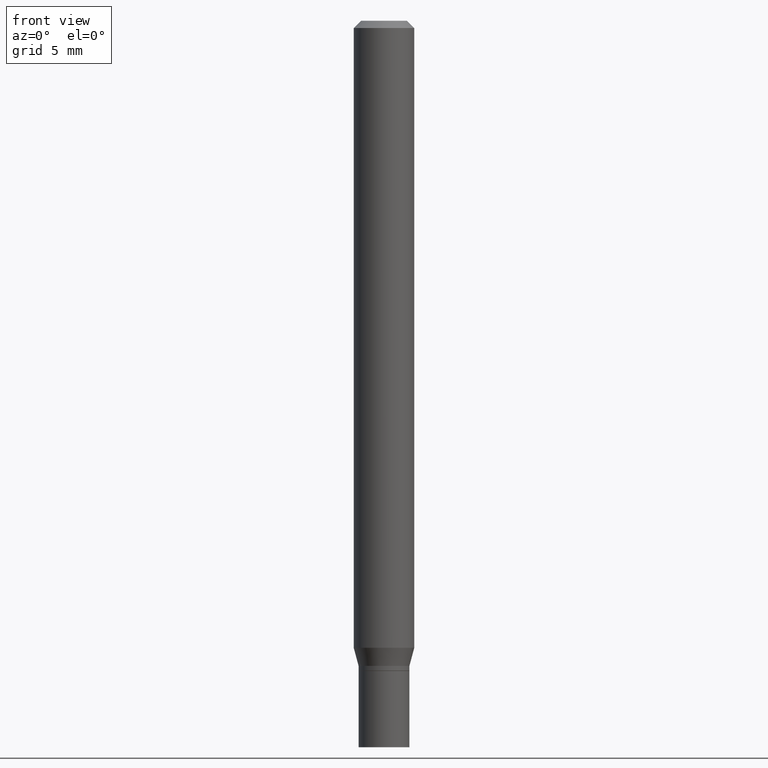
[diagram: clean part render]
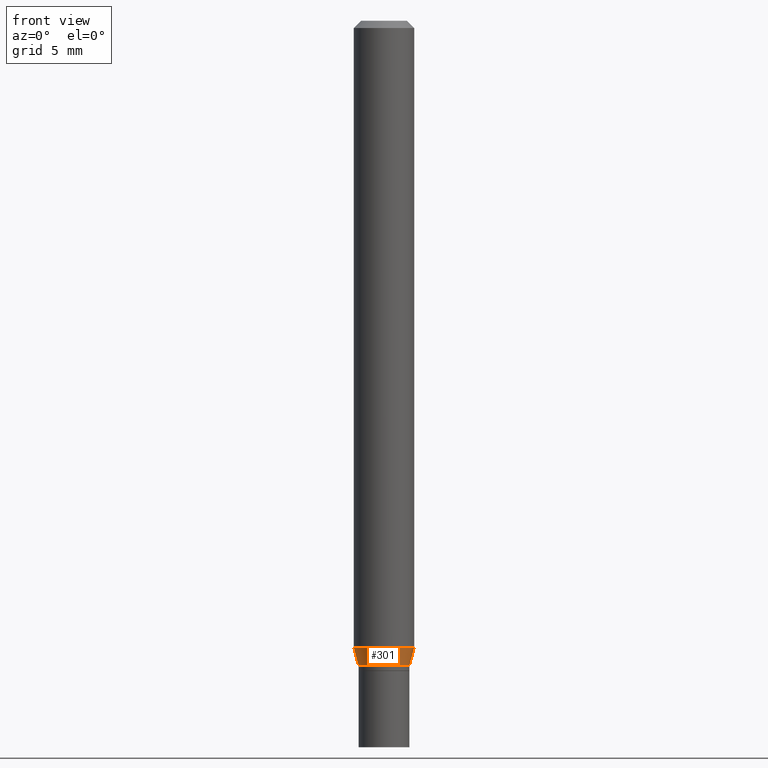
[diagram: same view with one face highlighted and labeled with its STEP entity id]
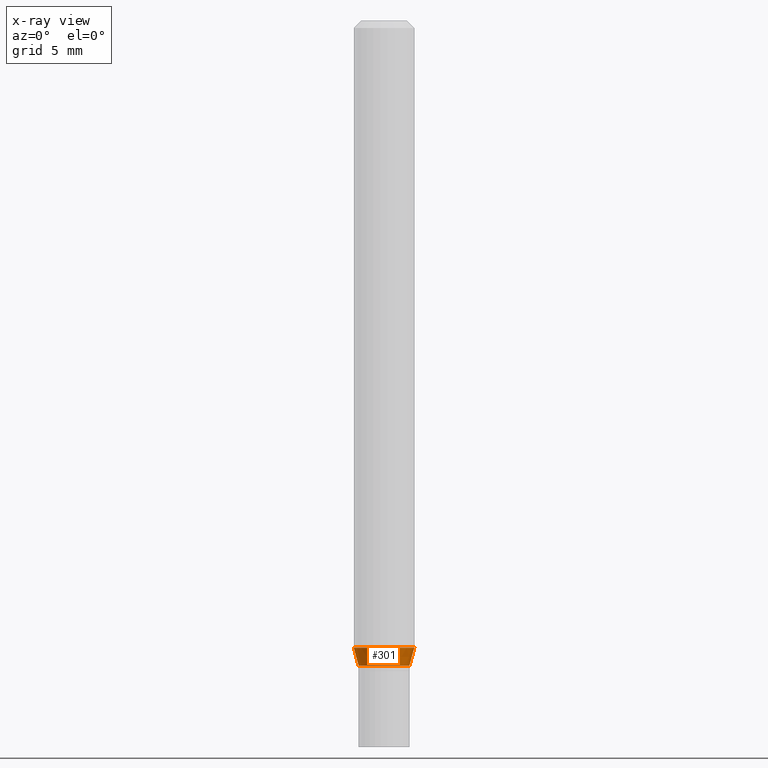
[diagram: x-ray of the same camera — body ghosted, the highlighted face saturated]
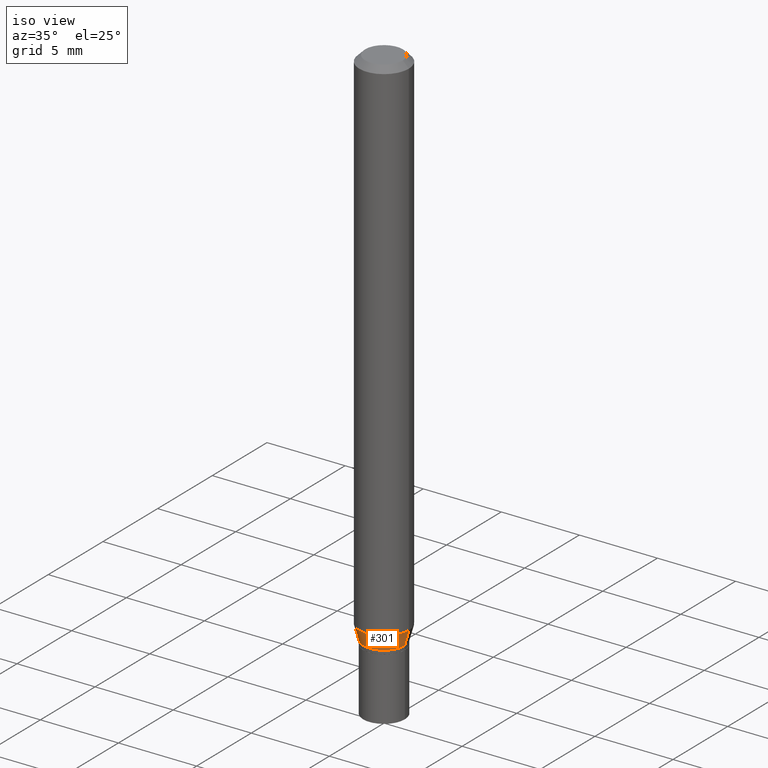
[diagram: same view with one face highlighted and labeled with its STEP entity id]
A machine part, front view. The second image highlights one B-rep face of the part: STEP entity #301.
The next image is the same camera in x-ray: the body ghosted, the highlighted face saturated — about 0% of this face is hidden behind the body in this view.
A second angle (iso view) of the same face is appended — the face is thin or edge-on in the first view.
In plain terms, the highlighted conical surface has half-angle 15 deg.
Its self-contained STEP definition (entity closure, byte-faithful):
#4 = ORIENTED_EDGE ( 'NONE', *, *, #116, .T. ) ;
#38 = ORIENTED_EDGE ( 'NONE', *, *, #144, .T. ) ;
#61 = EDGE_LOOP ( 'NONE', ( #89, #4, #38, #257 ) ) ;
#87 = CARTESIAN_POINT ( 'NONE',  ( -0.05249999999999992867, -4.277618207065018355E-15, -1.332000000000000073 ) ) ;
#88 = DIRECTION ( 'NONE',  ( -2.445468806185136597E-29, 3.491481338843145583E-15, 1.000000000000000000 ) ) ;
#89 = ORIENTED_EDGE ( 'NONE', *, *, #330, .F. ) ;
#96 = DIRECTION ( 'NONE',  ( -0.2588190451025214611, 5.211531920934551042E-15, 0.9659258262890682012 ) ) ;
#116 = EDGE_CURVE ( 'NONE', #118, #205, #348, .T. ) ;
#118 = VERTEX_POINT ( 'NONE', #327 ) ;
#128 = CARTESIAN_POINT ( 'NONE',  ( 0.05249999999999992867, -5.017258683917598472E-15, -1.332000000000000073 ) ) ;
#144 = EDGE_CURVE ( 'NONE', #205, #215, #232, .T. ) ;
#149 = AXIS2_PLACEMENT_3D ( 'NONE', #371, #239, #356 ) ;
#164 = VERTEX_POINT ( 'NONE', #370 ) ;
#183 = CONICAL_SURFACE ( 'NONE', #447, 0.05249999999999992867, 0.2617993877991501295 ) ;
#193 = CARTESIAN_POINT ( 'NONE',  ( 0.06250000000000000000, -4.956784453192048385E-15, -1.294679491924311199 ) ) ;
#205 = VERTEX_POINT ( 'NONE', #397 ) ;
#210 = FACE_OUTER_BOUND ( 'NONE', #61, .T. ) ;
#215 = VERTEX_POINT ( 'NONE', #193 ) ;
#232 = LINE ( 'NONE', #128, #405 ) ;
#239 = DIRECTION ( 'NONE',  ( -2.445468806185136597E-29, 3.491481338843145583E-15, 1.000000000000000000 ) ) ;
#257 = ORIENTED_EDGE ( 'NONE', *, *, #263, .F. ) ;
#263 = EDGE_CURVE ( 'NONE', #164, #215, #387, .T. ) ;
#264 = DIRECTION ( 'NONE',  ( 1.000000000000000000, -6.982962677686262766E-15, 0.000000000000000000 ) ) ;
#271 = DIRECTION ( 'NONE',  ( -2.445468806185136597E-29, 3.491481338843145583E-15, 1.000000000000000000 ) ) ;
#301 = ADVANCED_FACE ( 'NONE', ( #210 ), #183, .T. ) ;
#306 = AXIS2_PLACEMENT_3D ( 'NONE', #419, #88, #264 ) ;
#327 = CARTESIAN_POINT ( 'NONE',  ( -0.05249999999999992867, -4.176939141525806622E-15, -1.332000000000000073 ) ) ;
#330 = EDGE_CURVE ( 'NONE', #118, #164, #452, .T. ) ;
#348 = CIRCLE ( 'NONE', #149, 0.05249999999999992867 ) ;
#356 = DIRECTION ( 'NONE',  ( 1.000000000000000000, -6.982962677686259611E-15, 0.000000000000000000 ) ) ;
#370 = CARTESIAN_POINT ( 'NONE',  ( -0.06250000000000000000, -4.076260075986594889E-15, -1.294679491924311199 ) ) ;
#371 = CARTESIAN_POINT ( 'NONE',  ( 3.257364449838602072E-29, -4.650653143339070101E-15, -1.332000000000000073 ) ) ;
#387 = CIRCLE ( 'NONE', #306, 0.06250000000000000000 ) ;
#397 = CARTESIAN_POINT ( 'NONE',  ( 0.05249999999999992867, -5.017258683917598472E-15, -1.332000000000000073 ) ) ;
#405 = VECTOR ( 'NONE', #443, 39.37007874015747433 ) ;
#419 = CARTESIAN_POINT ( 'NONE',  ( 3.166098311508524347E-29, -4.520349285836657505E-15, -1.294679491924311199 ) ) ;
#426 = CARTESIAN_POINT ( 'NONE',  ( 3.257364449838602072E-29, -4.650653143339070101E-15, -1.332000000000000073 ) ) ;
#443 = DIRECTION ( 'NONE',  ( 0.2588190451025214611, 1.565188264969621573E-15, 0.9659258262890682012 ) ) ;
#447 = AXIS2_PLACEMENT_3D ( 'NONE', #426, #271, #449 ) ;
#449 = DIRECTION ( 'NONE',  ( 1.000000000000000000, -6.982962677686259611E-15, 0.000000000000000000 ) ) ;
#452 = LINE ( 'NONE', #87, #465 ) ;
#465 = VECTOR ( 'NONE', #96, 39.37007874015747433 ) ;